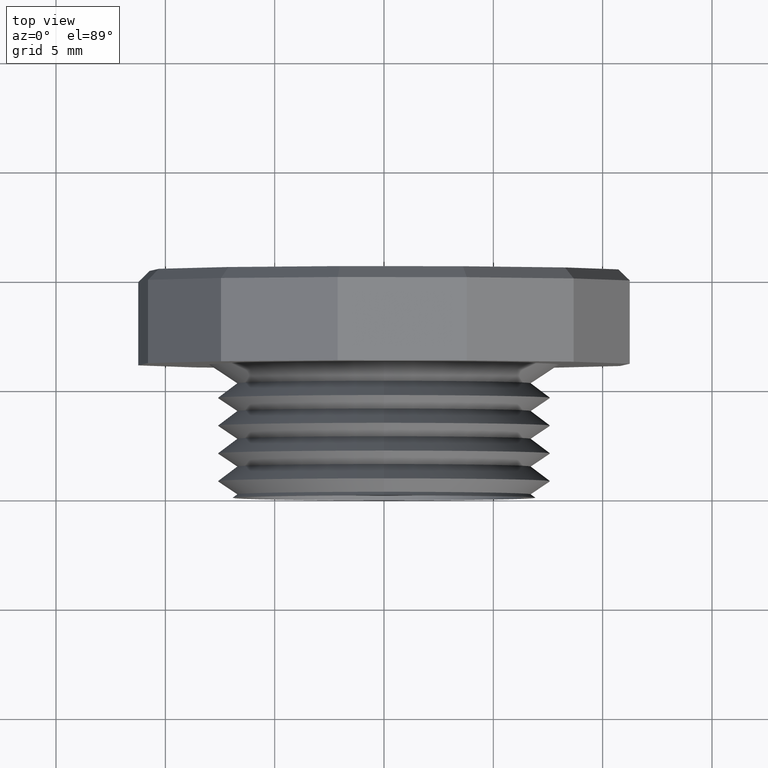
[diagram: clean part render]
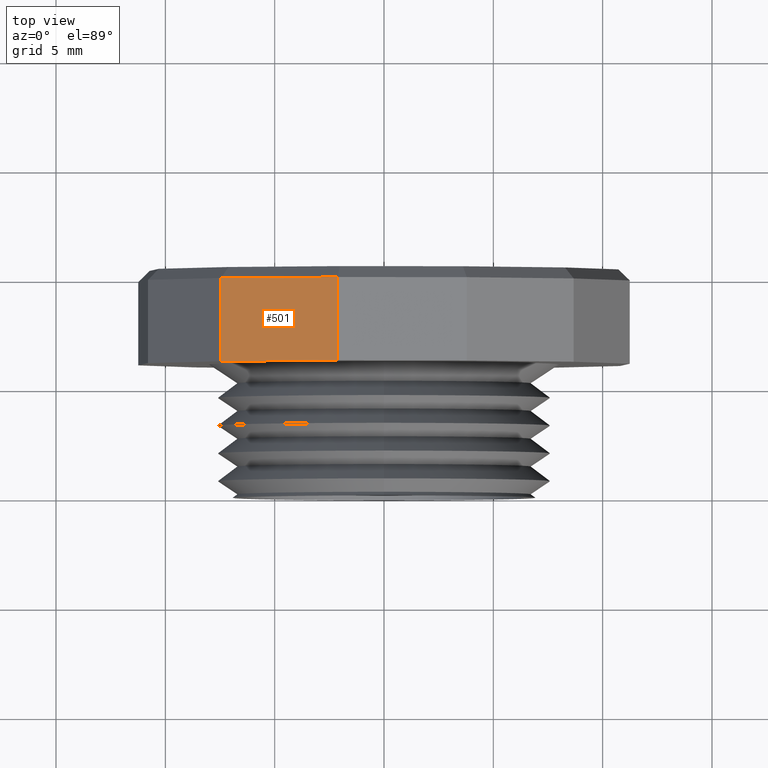
[diagram: same view with one face highlighted and labeled with its STEP entity id]
A machine part, top view. The second image highlights one B-rep face of the part: STEP entity #501.
In plain terms, the highlighted planar face has unit normal (-0.4332, 0, 0.9013).
Its self-contained STEP definition (entity closure, byte-faithful):
#4 = VERTEX_POINT ( 'NONE', #827 ) ;
#33 = EDGE_CURVE ( 'NONE', #4, #35, #894, .T. ) ;
#35 = VERTEX_POINT ( 'NONE', #890 ) ;
#179 = ORIENTED_EDGE ( 'NONE', *, *, #33, .F. ) ;
#180 = ORIENTED_EDGE ( 'NONE', *, *, #509, .T. ) ;
#181 = ORIENTED_EDGE ( 'NONE', *, *, #182, .T. ) ;
#182 = EDGE_CURVE ( 'NONE', #498, #504, #1146, .T. ) ;
#495 = EDGE_CURVE ( 'NONE', #498, #4, #1757, .T. ) ;
#497 = ORIENTED_EDGE ( 'NONE', *, *, #495, .F. ) ;
#498 = VERTEX_POINT ( 'NONE', #1749 ) ;
#500 = EDGE_LOOP ( 'NONE', ( #497, #181, #180, #179 ) ) ;
#501 = ADVANCED_FACE ( 'NONE', ( #1748 ), #1747, .T. ) ;
#504 = VERTEX_POINT ( 'NONE', #1737 ) ;
#509 = EDGE_CURVE ( 'NONE', #504, #35, #1788, .T. ) ;
#827 = CARTESIAN_POINT ( 'NONE',  ( -0.08339215205913490200, 0.2375548905829479600, 0.4425108348672900400 ) ) ;
#890 = CARTESIAN_POINT ( 'NONE',  ( -0.2934751395931106700, 0.2375548905829479600, 0.3415295484153663700 ) ) ;
#891 = DIRECTION ( 'NONE',  ( -0.9012861795382257600, 0.0000000000000000000, -0.4332242174364087700 ) ) ;
#892 = VECTOR ( 'NONE', #891, 39.37007874015748900 ) ;
#893 = CARTESIAN_POINT ( 'NONE',  ( -0.08339215205913490200, 0.2375548905829479600, 0.4425108348672900400 ) ) ;
#894 = LINE ( 'NONE', #893, #892 ) ;
#1143 = DIRECTION ( 'NONE',  ( -0.9012861795382257600, 0.0000000000000000000, -0.4332242174364087700 ) ) ;
#1144 = VECTOR ( 'NONE', #1143, 39.37007874015748900 ) ;
#1145 = CARTESIAN_POINT ( 'NONE',  ( -0.08339215205913490200, 0.3875548905829478400, 0.4425108348672900400 ) ) ;
#1146 = LINE ( 'NONE', #1145, #1144 ) ;
#1737 = CARTESIAN_POINT ( 'NONE',  ( -0.2934751395931106700, 0.3875548905829478400, 0.3415295484153663700 ) ) ;
#1743 = DIRECTION ( 'NONE',  ( 0.9012861795382257600, 0.0000000000000000000, 0.4332242174364087700 ) ) ;
#1744 = DIRECTION ( 'NONE',  ( -0.4332242174364088800, 0.0000000000000000000, 0.9012861795382259800 ) ) ;
#1745 = AXIS2_PLACEMENT_3D ( 'NONE', #1746, #1744, #1743 ) ;
#1746 = CARTESIAN_POINT ( 'NONE',  ( -0.08339215205913490200, 0.4075548905829479700, 0.4425108348672900400 ) ) ;
#1747 = PLANE ( 'NONE',  #1745 ) ;
#1748 = FACE_OUTER_BOUND ( 'NONE', #500, .T. ) ;
#1749 = CARTESIAN_POINT ( 'NONE',  ( -0.08339215205913490200, 0.3875548905829478400, 0.4425108348672900400 ) ) ;
#1754 = DIRECTION ( 'NONE',  ( -0.0000000000000000000, -1.000000000000000000, -0.0000000000000000000 ) ) ;
#1755 = VECTOR ( 'NONE', #1754, 39.37007874015748100 ) ;
#1756 = CARTESIAN_POINT ( 'NONE',  ( -0.08339215205913490200, 0.4075548905829479700, 0.4425108348672900400 ) ) ;
#1757 = LINE ( 'NONE', #1756, #1755 ) ;
#1785 = DIRECTION ( 'NONE',  ( -0.0000000000000000000, -1.000000000000000000, -0.0000000000000000000 ) ) ;
#1786 = VECTOR ( 'NONE', #1785, 39.37007874015748100 ) ;
#1787 = CARTESIAN_POINT ( 'NONE',  ( -0.2934751395931106700, 0.4075548905829479700, 0.3415295484153663700 ) ) ;
#1788 = LINE ( 'NONE', #1787, #1786 ) ;